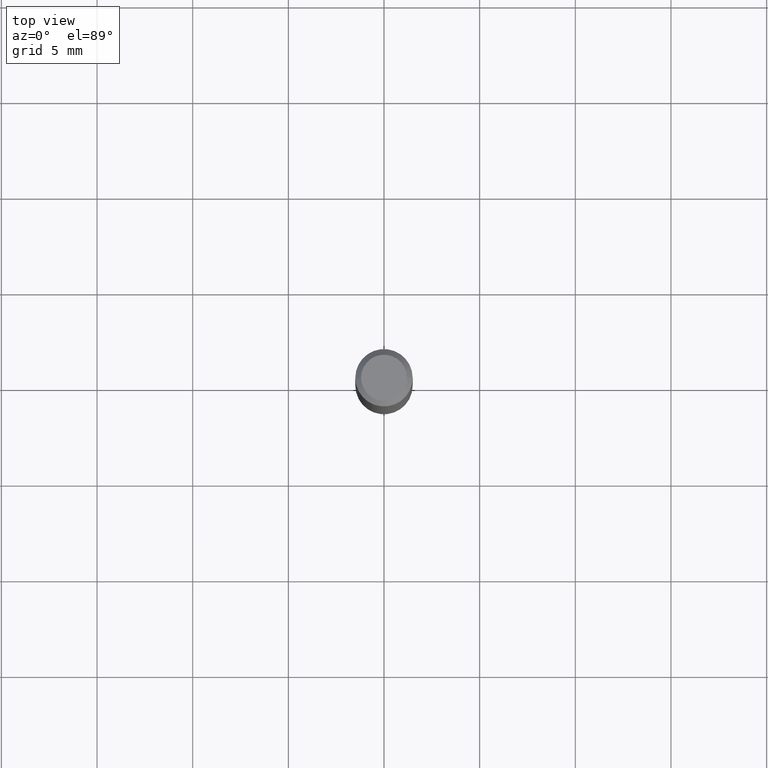
[diagram: clean part render]
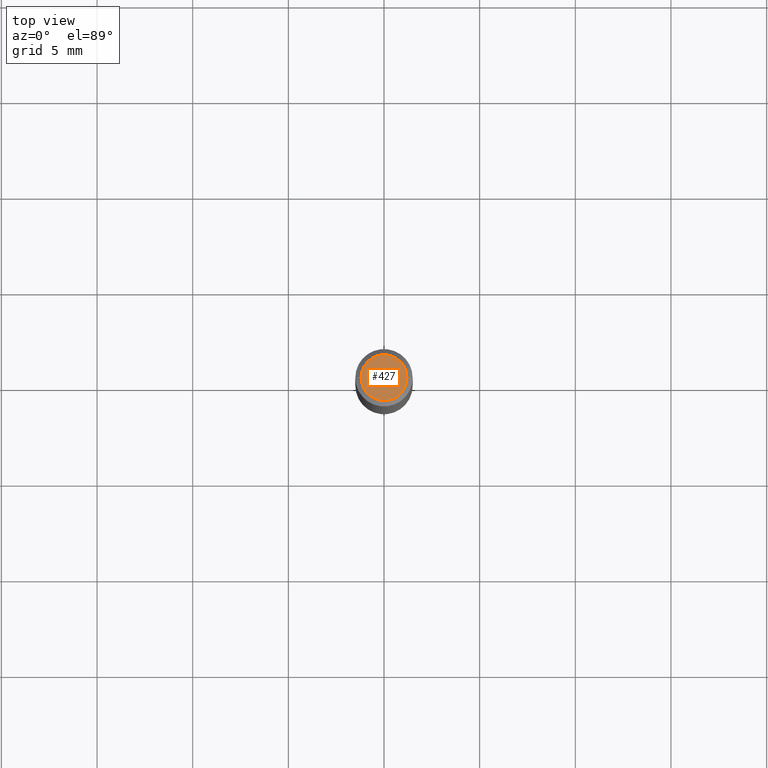
[diagram: same view with one face highlighted and labeled with its STEP entity id]
A machine part, top view. The second image highlights one B-rep face of the part: STEP entity #427.
In plain terms, the highlighted planar face has unit normal (0, -0, -1).
Its self-contained STEP definition (entity closure, byte-faithful):
#65 = DIRECTION ( 'NONE',  ( 2.438088387897960049E-29, -3.491481338843145188E-15, -1.000000000000000000 ) ) ;
#70 = DIRECTION ( 'NONE',  ( 1.000000000000000000, -6.982962677686266711E-15, 4.876185090822587894E-29 ) ) ;
#116 = DIRECTION ( 'NONE',  ( 1.000000000000000000, -6.982962677686266711E-15, 4.876185090822587894E-29 ) ) ;
#127 = EDGE_CURVE ( 'NONE', #480, #301, #385, .T. ) ;
#174 = AXIS2_PLACEMENT_3D ( 'NONE', #336, #65, #484 ) ;
#185 = ORIENTED_EDGE ( 'NONE', *, *, #127, .T. ) ;
#231 = DIRECTION ( 'NONE',  ( -2.445468806185136597E-29, 3.491481338843145583E-15, 1.000000000000000000 ) ) ;
#281 = EDGE_LOOP ( 'NONE', ( #474, #185 ) ) ;
#301 = VERTEX_POINT ( 'NONE', #396 ) ;
#336 = CARTESIAN_POINT ( 'NONE',  ( 4.132873053354867254E-48, -5.900647395337818946E-34, -1.690012582823346072E-19 ) ) ;
#339 = DIRECTION ( 'NONE',  ( -2.445468806185136597E-29, 3.491481338843145583E-15, 1.000000000000000000 ) ) ;
#350 = AXIS2_PLACEMENT_3D ( 'NONE', #442, #339, #70 ) ;
#385 = CIRCLE ( 'NONE', #454, 0.04724000000000000421 ) ;
#389 = CARTESIAN_POINT ( 'NONE',  ( 8.265746106709734507E-48, -1.180129479067563789E-33, -3.380025165646692144E-19 ) ) ;
#396 = CARTESIAN_POINT ( 'NONE',  ( -0.04724000000000000421, 3.504923541997677355E-16, -3.380025165670481712E-19 ) ) ;
#397 = EDGE_CURVE ( 'NONE', #301, #480, #479, .T. ) ;
#414 = PLANE ( 'NONE',  #174 ) ;
#427 = ADVANCED_FACE ( 'NONE', ( #439 ), #414, .F. ) ;
#439 = FACE_OUTER_BOUND ( 'NONE', #281, .T. ) ;
#442 = CARTESIAN_POINT ( 'NONE',  ( 8.265746106709734507E-48, -1.180129479067563789E-33, -3.380025165646692144E-19 ) ) ;
#445 = CARTESIAN_POINT ( 'NONE',  ( 0.04724000000000000421, -3.852183633974369345E-16, -3.380025165621689721E-19 ) ) ;
#454 = AXIS2_PLACEMENT_3D ( 'NONE', #389, #231, #116 ) ;
#474 = ORIENTED_EDGE ( 'NONE', *, *, #397, .T. ) ;
#479 = CIRCLE ( 'NONE', #350, 0.04724000000000000421 ) ;
#480 = VERTEX_POINT ( 'NONE', #445 ) ;
#484 = DIRECTION ( 'NONE',  ( -1.000000000000000000, 6.982962677686265922E-15, -4.876176775795935793E-29 ) ) ;